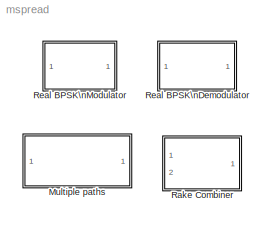
MODEL mspread
KIND library
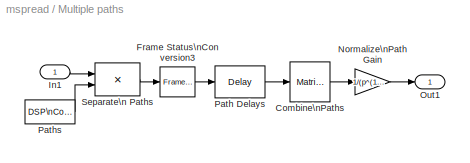
BLOCK [SubSystem] Multiple paths
  EnableExecutionContextPropagation = on
  MaskCallbackString = ||
  MaskDescription = The input signal traverses through the multiple paths and the output is a combined signal.
  MaskDisplay = disp(['Propagate through \\n' num2str(p) ' Paths']);\n
  MaskEnableString = on,on,on
  MaskIconFrame = on
  MaskIconOpaque = on
  MaskIconRotate = none
  MaskIconUnits = autoscale
  MaskPromptString = Number of paths:|Path delays:|Input sample time:
  MaskStyleString = edit,edit,edit
  MaskTabNameString = ,,
  MaskToolTipString = on,on,on
  MaskTunableValueString = on,on,on
  MaskType = Multiple Paths
  MaskValueString = 3|[0 2 6]|1/19200
  MaskVarAliasString = ,,
  MaskVariables = p=@1;pd=@2;ts=@3;
  MaskVisibilityString = on,on,on
  MinAlgLoopOccurrences = off
  Ports = [1, 1]
  TreatAsAtomicUnit = off
BLOCK [Reference] Multiple paths/Combine\nPaths  REF=dspmtrx3/Matrix\nSum
  Dim = Rows
  Ports = [1, 1]
  SourceBlock = dspmtrx3/Matrix\nSum
  SourceType = Matrix Sum
  accumFracLength = 30
  accumMode = Inherit via internal rule
  accumWordLength = 32
  additionalParams = off
  allowOverrides = on
  outputFracLength = 15
  outputMode = Same as input
  outputWordLength = 16
  overflowMode = off
  roundingMode = Floor
BLOCK [Reference] Multiple paths/Frame Status\nConversion3  REF=dspsigattribs/Frame Status\nConversion
  Ports = [1, 1]
  ShowPortLabels = off
  SourceBlock = dspsigattribs/Frame Status\nConversion
  SourceType = Frame Status Conversion
  growRefPort = off
  outframe = Frame-based
BLOCK [Inport] Multiple paths/In1
  IconDisplay = Port number
  LatchInput = off
BLOCK [Gain] Multiple paths/Normalize\nPath Gain
  Gain = 1/(p^(1/3))
BLOCK [Outport] Multiple paths/Out1
  IconDisplay = Port number
BLOCK [Reference] Multiple paths/Path Delays  REF=dspsigops/Delay
  Ports = [1, 1]
  SourceBlock = dspsigops/Delay
  SourceType = Delay
  delay = pd
  dif_ic_for_ch = off
  dif_ic_for_dly = off
  dly_unit = Samples
  ic = 0
  ic_detail = off
  reset_popup = None
BLOCK [Reference] Multiple paths/Paths  REF=dspsrcs4/DSP\nConstant
  FramebasedOutput = on
  InterpretAs1D = off
  Ports = [0, 1]
  SampleMode = Discrete
  ShowPortLabels = on
  SourceBlock = dspsrcs4/DSP\nConstant
  SourceType = DSP Constant
  Ts = ts
  Value = ones(1,p)
  additionalParams = off
  allowOverrides = on
  continuousOutput = Sample-based
  dataType = Inherit from 'Constant value'
  discreteOutput = Frame-based
  fracBitsMode = Best precision
  framePeriod = ts
  numFracBits = 15
  sampTime = ts
  udDataType = sfix(16)
  wordLen = 16
BLOCK [Product] Multiple paths/Separate\n Paths
  Multiplication = Matrix(*)
  Ports = [2, 1]
  RndMeth = Floor
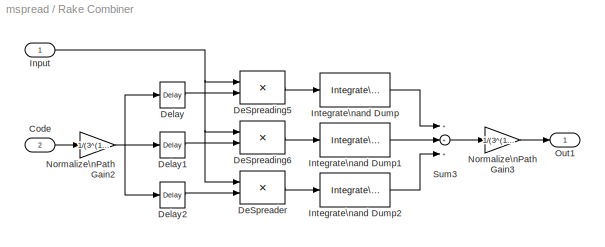
BLOCK [SubSystem] Rake Combiner
  EnableExecutionContextPropagation = on
  MaskCallbackString = |
  MaskDescription = The individual paths are equally combined in terms of power/gain.
  MaskDisplay = disp('Rake\\nCombiner');
  MaskEnableString = on,on
  MaskIconFrame = on
  MaskIconOpaque = on
  MaskIconRotate = none
  MaskIconUnits = autoscale
  MaskPromptString = Delay vector (in samples for 3 paths):|Samples to integrate:
  MaskStyleString = edit,edit
  MaskTabNameString = ,
  MaskToolTipString = on,on
  MaskTunableValueString = on,on
  MaskType = Rake combiner
  MaskValueString = [0 2 6]|64
  MaskVarAliasString = ,
  MaskVariables = pd=@1;pgain=@2;
  MaskVisibilityString = on,on
  MinAlgLoopOccurrences = off
  Ports = [2, 1]
  TreatAsAtomicUnit = off
BLOCK [Inport] Rake Combiner/Code
  IconDisplay = Port number
  LatchInput = off
  Port = 2
BLOCK [Product] Rake Combiner/DeSpreader
  Ports = [2, 1]
  RndMeth = Floor
BLOCK [Product] Rake Combiner/DeSpreading5
  Ports = [2, 1]
  RndMeth = Floor
BLOCK [Product] Rake Combiner/DeSpreading6
  Ports = [2, 1]
  RndMeth = Floor
BLOCK [Reference] Rake Combiner/Delay  REF=dspsigops/Delay
  Ports = [1, 1]
  SourceBlock = dspsigops/Delay
  SourceType = Delay
  delay = pd(1)
  dif_ic_for_ch = off
  dif_ic_for_dly = off
  dly_unit = Samples
  ic = 0
  ic_detail = off
  reset_popup = None
BLOCK [Reference] Rake Combiner/Delay1  REF=dspsigops/Delay
  Ports = [1, 1]
  SourceBlock = dspsigops/Delay
  SourceType = Delay
  delay = pd(2)
  dif_ic_for_ch = off
  dif_ic_for_dly = off
  dly_unit = Samples
  ic = 0
  ic_detail = off
  reset_popup = None
BLOCK [Reference] Rake Combiner/Delay2  REF=dspsigops/Delay
  Ports = [1, 1]
  SourceBlock = dspsigops/Delay
  SourceType = Delay
  delay = pd(3)
  dif_ic_for_ch = off
  dif_ic_for_dly = off
  dly_unit = Samples
  ic = 0
  ic_detail = off
  reset_popup = None
BLOCK [Inport] Rake Combiner/Input
  IconDisplay = Port number
  LatchInput = off
BLOCK [Reference] Rake Combiner/Integrate\nand Dump  REF=commfilt2/Integrate\nand Dump
  Ports = [1, 1]
  SourceBlock = commfilt2/Integrate\nand Dump
  SourceType = Integrate and dump
  nodump = off
  obssamples = pgain
  offsetsamples = 0
BLOCK [Reference] Rake Combiner/Integrate\nand Dump1  REF=commfilt2/Integrate\nand Dump
  Ports = [1, 1]
  SourceBlock = commfilt2/Integrate\nand Dump
  SourceType = Integrate and dump
  nodump = off
  obssamples = pgain
  offsetsamples = 0
BLOCK [Reference] Rake Combiner/Integrate\nand Dump2  REF=commfilt2/Integrate\nand Dump
  Ports = [1, 1]
  SourceBlock = commfilt2/Integrate\nand Dump
  SourceType = Integrate and dump
  nodump = off
  obssamples = pgain
  offsetsamples = 0
BLOCK [Gain] Rake Combiner/Normalize\nPath Gain2
  Gain = 1/(3^(1/3))
BLOCK [Gain] Rake Combiner/Normalize\nPath Gain3
  Gain = 1/(3^(1/3))
BLOCK [Outport] Rake Combiner/Out1
  IconDisplay = Port number
BLOCK [Sum] Rake Combiner/Sum3
  Inputs = +++
  Ports = [3, 1]
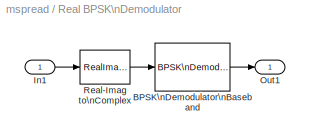
BLOCK [SubSystem] Real BPSK\nDemodulator
  EnableExecutionContextPropagation = on
  MaskDisplay = disp('Real BPSK\\nDemodulator');\n
  MaskIconFrame = on
  MaskIconOpaque = on
  MaskIconRotate = none
  MaskIconUnits = autoscale
  MaskType = Real BPSK Demodulator
  MinAlgLoopOccurrences = off
  Ports = [1, 1]
  TreatAsAtomicUnit = off
BLOCK [Reference] Real BPSK\nDemodulator/BPSK\nDemodulator\nBaseband  REF=commdigbbndpm2/BPSK\nDemodulator\nBaseband
  Ph = 0
  Ports = [1, 1]
  SourceBlock = commdigbbndpm2/BPSK\nDemodulator\nBaseband
  SourceType = BPSK Demodulator Baseband
  numSamp = 1
BLOCK [Inport] Real BPSK\nDemodulator/In1
  IconDisplay = Port number
  LatchInput = off
BLOCK [Outport] Real BPSK\nDemodulator/Out1
  IconDisplay = Port number
BLOCK [RealImagToComplex] Real BPSK\nDemodulator/Real-Imag to\nComplex
  Input = Real
  Ports = [1, 1]
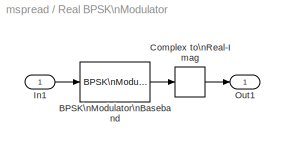
BLOCK [SubSystem] Real BPSK\nModulator
  EnableExecutionContextPropagation = on
  MaskDisplay = disp('Real BPSK\\nModulator');
  MaskIconFrame = on
  MaskIconOpaque = on
  MaskIconRotate = none
  MaskIconUnits = autoscale
  MaskType = Real BPSK Modulator
  MinAlgLoopOccurrences = off
  Ports = [1, 1]
  TreatAsAtomicUnit = off
BLOCK [Reference] Real BPSK\nModulator/BPSK\nModulator\nBaseband  REF=commdigbbndpm2/BPSK\nModulator\nBaseband
  Ph = 0
  Ports = [1, 1]
  SourceBlock = commdigbbndpm2/BPSK\nModulator\nBaseband
  SourceType = BPSK Modulator Baseband
  numSamp = 1
BLOCK [ComplexToRealImag] Real BPSK\nModulator/Complex to\nReal-Imag
  Output = Real
  Ports = [1, 1]
BLOCK [Inport] Real BPSK\nModulator/In1
  IconDisplay = Port number
  LatchInput = off
BLOCK [Outport] Real BPSK\nModulator/Out1
  IconDisplay = Port number
LINE Multiple paths/Combine\nPaths:1 -> Multiple paths/Normalize\nPath Gain:1
LINE Multiple paths/Frame Status\nConversion3:1 -> Multiple paths/Path Delays:1
LINE Multiple paths/In1:1 -> Multiple paths/Separate\n Paths:1
LINE Multiple paths/Normalize\nPath Gain:1 -> Multiple paths/Out1:1
LINE Multiple paths/Path Delays:1 -> Multiple paths/Combine\nPaths:1
LINE Multiple paths/Paths:1 -> Multiple paths/Separate\n Paths:2
LINE Multiple paths/Separate\n Paths:1 -> Multiple paths/Frame Status\nConversion3:1
LINE Rake Combiner/Code:1 -> Rake Combiner/Normalize\nPath Gain2:1
LINE Rake Combiner/DeSpreader:1 -> Rake Combiner/Integrate\nand Dump2:1
LINE Rake Combiner/DeSpreading5:1 -> Rake Combiner/Integrate\nand Dump:1
LINE Rake Combiner/DeSpreading6:1 -> Rake Combiner/Integrate\nand Dump1:1
LINE Rake Combiner/Delay1:1 -> Rake Combiner/DeSpreading6:2
LINE Rake Combiner/Delay2:1 -> Rake Combiner/DeSpreader:2
LINE Rake Combiner/Delay:1 -> Rake Combiner/DeSpreading5:2
NET Rake Combiner/Input:1 -> Rake Combiner/DeSpreader:1, Rake Combiner/DeSpreading5:1, Rake Combiner/DeSpreading6:1
LINE Rake Combiner/Integrate\nand Dump1:1 -> Rake Combiner/Sum3:2
LINE Rake Combiner/Integrate\nand Dump2:1 -> Rake Combiner/Sum3:3
LINE Rake Combiner/Integrate\nand Dump:1 -> Rake Combiner/Sum3:1
NET Rake Combiner/Normalize\nPath Gain2:1 -> Rake Combiner/Delay1:1, Rake Combiner/Delay2:1, Rake Combiner/Delay:1
LINE Rake Combiner/Normalize\nPath Gain3:1 -> Rake Combiner/Out1:1
LINE Rake Combiner/Sum3:1 -> Rake Combiner/Normalize\nPath Gain3:1
LINE Real BPSK\nDemodulator/BPSK\nDemodulator\nBaseband:1 -> Real BPSK\nDemodulator/Out1:1
LINE Real BPSK\nDemodulator/In1:1 -> Real BPSK\nDemodulator/Real-Imag to\nComplex:1
LINE Real BPSK\nDemodulator/Real-Imag to\nComplex:1 -> Real BPSK\nDemodulator/BPSK\nDemodulator\nBaseband:1
LINE Real BPSK\nModulator/BPSK\nModulator\nBaseband:1 -> Real BPSK\nModulator/Complex to\nReal-Imag:1
LINE Real BPSK\nModulator/Complex to\nReal-Imag:1 -> Real BPSK\nModulator/Out1:1
LINE Real BPSK\nModulator/In1:1 -> Real BPSK\nModulator/BPSK\nModulator\nBaseband:1
note: NET lines group one-source signal fan-out (src -> all destinations, sorted); 1:1 wires keep LINE
